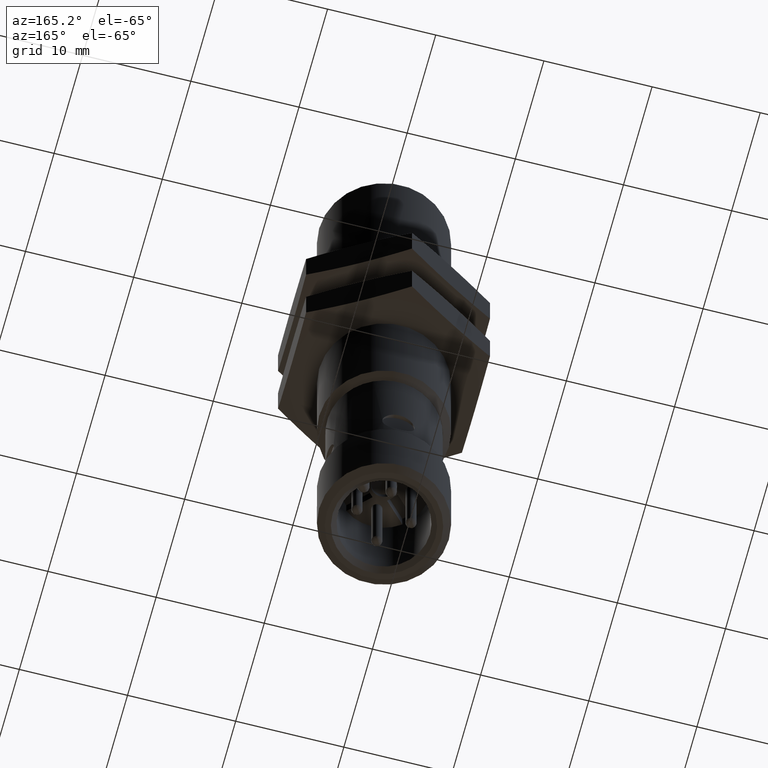
[diagram: clean part render]
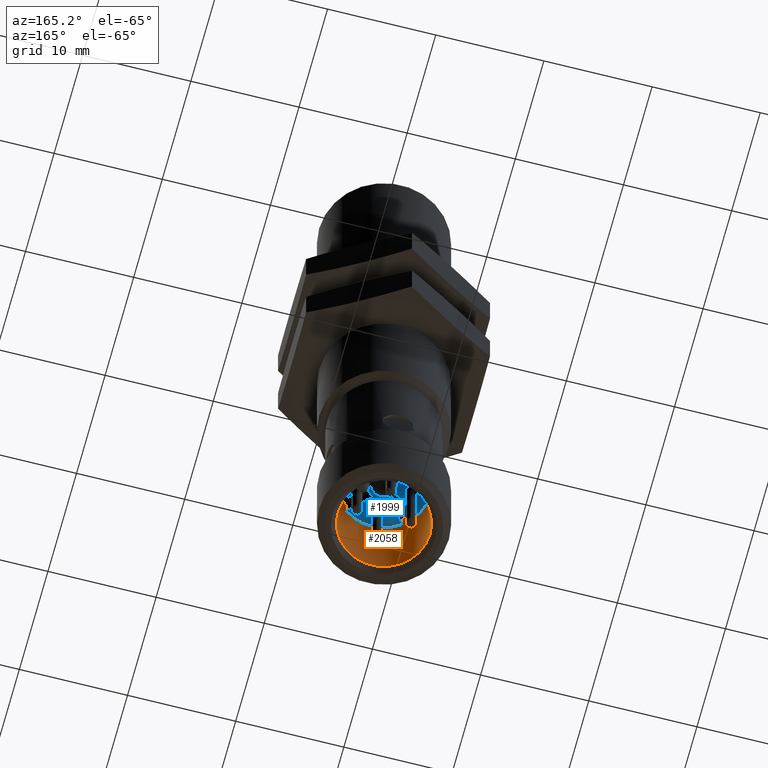
[diagram: same view with the hole feature highlighted: cylindrical wall and planar end face, labeled with their STEP entity ids]
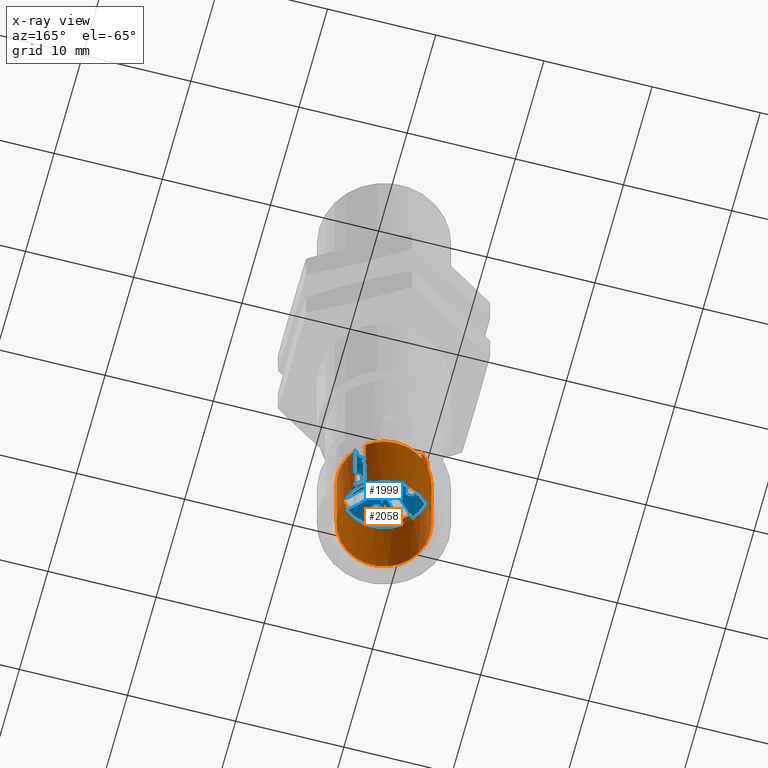
[diagram: x-ray of the same camera — body ghosted, the hole faces saturated]
A machine part, auxiliary view. The highlighted faces form one hole feature of diameter 8.5 mm: the cylindrical wall (entity #2058, orange) and its adjacent planar end face (entity #1999, blue) — they share a circular edge in the B-rep.
The next image is the same camera in x-ray (body ghosted, the hole faces saturated) — the bore reads through the body.
Wall:
#12 = VERTEX_POINT ( 'NONE', #1235 ) ;
#13 = EDGE_CURVE ( 'NONE', #2247, #2663, #2205, .T. ) ;
#50 = ORIENTED_EDGE ( 'NONE', *, *, #515, .F. ) ;
#53 = CARTESIAN_POINT ( 'NONE',  ( 100.9212680712877841, -34.78452409100841436, -25.02407678064943752 ) ) ;
#56 = VERTEX_POINT ( 'NONE', #521 ) ;
#73 = EDGE_CURVE ( 'NONE', #2247, #1303, #962, .T. ) ;
#97 = EDGE_CURVE ( 'NONE', #722, #2663, #1997, .T. ) ;
#110 = CARTESIAN_POINT ( 'NONE',  ( 101.1558730924629685, -34.83176818549659970, -24.99318428921344903 ) ) ;
#116 = EDGE_CURVE ( 'NONE', #56, #1866, #2099, .T. ) ;
#117 = LINE ( 'NONE', #1036, #2563 ) ;
#160 = VECTOR ( 'NONE', #2659, 39.37007874015748143 ) ;
#181 = AXIS2_PLACEMENT_3D ( 'NONE', #2491, #2003, #1794 ) ;
#201 = ORIENTED_EDGE ( 'NONE', *, *, #448, .T. ) ;
#226 = DIRECTION ( 'NONE',  ( -0.0000000000000000000, -1.000000000000000000, -0.0000000000000000000 ) ) ;
#259 = CARTESIAN_POINT ( 'NONE',  ( 101.1865310152355164, -34.78452409100841436, -25.02377179519677952 ) ) ;
#270 = DIRECTION ( 'NONE',  ( -0.0000000000000000000, -1.000000000000000000, -0.0000000000000000000 ) ) ;
#309 = VERTEX_POINT ( 'NONE', #1113 ) ;
#352 = DIRECTION ( 'NONE',  ( 0.0000000000000000000, 0.0000000000000000000, 1.000000000000000000 ) ) ;
#408 = CYLINDRICAL_SURFACE ( 'NONE', #618, 0.1673228346456727134 ) ;
#416 = AXIS2_PLACEMENT_3D ( 'NONE', #682, #1190, #2834 ) ;
#437 = VERTEX_POINT ( 'NONE', #259 ) ;
#448 = EDGE_CURVE ( 'NONE', #1394, #12, #1919, .T. ) ;
#497 = VERTEX_POINT ( 'NONE', #1422 ) ;
#515 = EDGE_CURVE ( 'NONE', #1866, #2445, #1814, .T. ) ;
#521 = CARTESIAN_POINT ( 'NONE',  ( 101.1867655838989606, -34.50105952407928100, -25.22778931038862282 ) ) ;
#537 = EDGE_CURVE ( 'NONE', #309, #1303, #1031, .T. ) ;
#550 = DIRECTION ( 'NONE',  ( 0.0000000000000000000, 1.000000000000000000, 0.0000000000000000000 ) ) ;
#551 = CARTESIAN_POINT ( 'NONE',  ( 101.1561780779156265, -34.50105952407928100, -25.25844723316116713 ) ) ;
#552 = CARTESIAN_POINT ( 'NONE',  ( 100.9212680712877841, -34.78452409100841436, -25.02407678064943752 ) ) ;
#578 = AXIS2_PLACEMENT_3D ( 'NONE', #1976, #550, #352 ) ;
#592 = CARTESIAN_POINT ( 'NONE',  ( 101.1853437073882844, -34.48973788764809711, -25.22969352719796277 ) ) ;
#618 = AXIS2_PLACEMENT_3D ( 'NONE', #2931, #1573, #635 ) ;
#622 = DIRECTION ( 'NONE',  ( 0.0000000000000000000, 0.0000000000000000000, 1.000000000000000000 ) ) ;
#635 = DIRECTION ( 'NONE',  ( 0.0000000000000000000, 0.0000000000000000000, 1.000000000000000000 ) ) ;
#650 = CARTESIAN_POINT ( 'NONE',  ( 101.1561780779156265, -34.78452409100841436, -25.25844723316117069 ) ) ;
#670 = AXIS2_PLACEMENT_3D ( 'NONE', #1194, #1164, #2387 ) ;
#682 = CARTESIAN_POINT ( 'NONE',  ( 101.0540168275933723, -34.83176818549659970, -25.12593304551903017 ) ) ;
#689 = VERTEX_POINT ( 'NONE', #1818 ) ;
#693 = CARTESIAN_POINT ( 'NONE',  ( 101.0540168275933723, -34.46168944533857825, -25.12593304551903017 ) ) ;
#722 = VERTEX_POINT ( 'NONE', #1388 ) ;
#735 = EDGE_CURVE ( 'NONE', #437, #689, #3008, .T. ) ;
#753 = DIRECTION ( 'NONE',  ( 0.0000000000000000000, 1.000000000000000000, 0.0000000000000000000 ) ) ;
#755 = EDGE_CURVE ( 'NONE', #1060, #1060, #2384, .T. ) ;
#793 = CARTESIAN_POINT ( 'NONE',  ( 101.1867655838989748, -34.49533157912034653, -25.22778931038862282 ) ) ;
#810 = VERTEX_POINT ( 'NONE', #2361 ) ;
#836 = LINE ( 'NONE', #1442, #2340 ) ;
#879 = VECTOR ( 'NONE', #1293, 39.37007874015748143 ) ;
#909 = AXIS2_PLACEMENT_3D ( 'NONE', #2770, #1833, #2062 ) ;
#913 = CARTESIAN_POINT ( 'NONE',  ( 101.1865310152355164, -34.78452409100841436, -25.02377179519677952 ) ) ;
#938 = CARTESIAN_POINT ( 'NONE',  ( 101.1724678928510599, -34.46168944533857825, -25.24411204590913727 ) ) ;
#957 = CARTESIAN_POINT ( 'NONE',  ( 101.1558730924629685, -34.78452409100841436, -24.99318428921345259 ) ) ;
#962 = CIRCLE ( 'NONE', #416, 0.1673228346456727134 ) ;
#980 = EDGE_CURVE ( 'NONE', #437, #2991, #2419, .T. ) ;
#1017 = ORIENTED_EDGE ( 'NONE', *, *, #13, .T. ) ;
#1021 = DIRECTION ( 'NONE',  ( 0.0000000000000000000, 0.0000000000000000000, 1.000000000000000000 ) ) ;
#1022 = FACE_OUTER_BOUND ( 'NONE', #2873, .T. ) ;
#1031 = LINE ( 'NONE', #1706, #160 ) ;
#1036 = CARTESIAN_POINT ( 'NONE',  ( 100.9215026399512283, -34.78452409100841436, -25.22809429584128083 ) ) ;
#1051 = CARTESIAN_POINT ( 'NONE',  ( 101.1802263795434556, -34.48175784492842411, -25.23586091237482165 ) ) ;
#1060 = VERTEX_POINT ( 'NONE', #938 ) ;
#1090 = ORIENTED_EDGE ( 'NONE', *, *, #755, .T. ) ;
#1113 = CARTESIAN_POINT ( 'NONE',  ( 100.9518555772711039, -34.78452409100841436, -24.99341885787689321 ) ) ;
#1163 = EDGE_CURVE ( 'NONE', #1394, #689, #2862, .T. ) ;
#1164 = DIRECTION ( 'NONE',  ( 0.0000000000000000000, 1.000000000000000000, 0.0000000000000000000 ) ) ;
#1175 = VERTEX_POINT ( 'NONE', #1696 ) ;
#1190 = DIRECTION ( 'NONE',  ( 0.0000000000000000000, 1.000000000000000000, 0.0000000000000000000 ) ) ;
#1194 = CARTESIAN_POINT ( 'NONE',  ( 101.0540168275933723, -34.83176818549659970, -25.12593304551903017 ) ) ;
#1235 = CARTESIAN_POINT ( 'NONE',  ( 101.1558730924629685, -34.78452409100841436, -24.99318428921344903 ) ) ;
#1242 = CIRCLE ( 'NONE', #181, 0.1673228346456727134 ) ;
#1245 = CARTESIAN_POINT ( 'NONE',  ( 101.1764724297257203, -34.47941012559618912, -25.24009753057887551 ) ) ;
#1255 = CARTESIAN_POINT ( 'NONE',  ( 101.1642815788440828, -34.48170178516435413, -25.25185003823481722 ) ) ;
#1290 = DIRECTION ( 'NONE',  ( 0.0000000000000000000, 1.000000000000000000, 0.0000000000000000000 ) ) ;
#1293 = DIRECTION ( 'NONE',  ( 0.0000000000000000000, 1.000000000000000000, 0.0000000000000000000 ) ) ;
#1303 = VERTEX_POINT ( 'NONE', #1494 ) ;
#1313 = AXIS2_PLACEMENT_3D ( 'NONE', #2686, #1290, #622 ) ;
#1328 = ORIENTED_EDGE ( 'NONE', *, *, #1364, .T. ) ;
#1364 = EDGE_CURVE ( 'NONE', #722, #497, #117, .T. ) ;
#1388 = CARTESIAN_POINT ( 'NONE',  ( 100.9215026399512283, -34.78452409100841436, -25.22809429584128083 ) ) ;
#1394 = VERTEX_POINT ( 'NONE', #110 ) ;
#1422 = CARTESIAN_POINT ( 'NONE',  ( 100.9215026399512425, -34.83176818549659970, -25.22809429584128438 ) ) ;
#1442 = CARTESIAN_POINT ( 'NONE',  ( 101.1867655838989606, -34.44200440596904400, -25.22778931038861927 ) ) ;
#1445 = EDGE_CURVE ( 'NONE', #810, #1175, #1775, .T. ) ;
#1451 = EDGE_LOOP ( 'NONE', ( #1505, #2914, #2109, #2441, #2703, #201, #1900, #2284, #2586, #1017, #2669, #1328, #2144, #2804, #2878, #50 ) ) ;
#1487 = CARTESIAN_POINT ( 'NONE',  ( 101.1561780779156265, -34.50105952407928100, -25.25844723316116713 ) ) ;
#1494 = CARTESIAN_POINT ( 'NONE',  ( 100.9518555772711181, -34.83176818549659970, -24.99341885787688611 ) ) ;
#1505 = ORIENTED_EDGE ( 'NONE', *, *, #116, .F. ) ;
#1519 = DIRECTION ( 'NONE',  ( 0.0000000000000000000, 1.000000000000000000, 0.0000000000000000000 ) ) ;
#1535 = DIRECTION ( 'NONE',  ( -0.0000000000000000000, -1.000000000000000000, 0.0000000000000000000 ) ) ;
#1536 = AXIS2_PLACEMENT_3D ( 'NONE', #693, #2570, #1599 ) ;
#1573 = DIRECTION ( 'NONE',  ( 0.0000000000000000000, 1.000000000000000000, 0.0000000000000000000 ) ) ;
#1587 = VECTOR ( 'NONE', #226, 39.37007874015748143 ) ;
#1590 = VECTOR ( 'NONE', #2809, 39.37007874015748143 ) ;
#1599 = DIRECTION ( 'NONE',  ( 0.7079193076573965238, 0.0000000000000000000, -0.7062933199782314153 ) ) ;
#1696 = CARTESIAN_POINT ( 'NONE',  ( 100.9521605627237761, -34.78452409100841436, -25.25868180182461131 ) ) ;
#1706 = CARTESIAN_POINT ( 'NONE',  ( 100.9518555772711181, -34.78452409100841436, -24.99341885787688611 ) ) ;
#1775 = LINE ( 'NONE', #2465, #879 ) ;
#1778 = EDGE_CURVE ( 'NONE', #2991, #56, #836, .T. ) ;
#1794 = DIRECTION ( 'NONE',  ( 0.0000000000000000000, 0.0000000000000000000, 1.000000000000000000 ) ) ;
#1814 = LINE ( 'NONE', #2388, #2973 ) ;
#1818 = CARTESIAN_POINT ( 'NONE',  ( 101.1865310152355022, -34.83176818549659970, -25.02377179519677597 ) ) ;
#1833 = DIRECTION ( 'NONE',  ( 0.0000000000000000000, 1.000000000000000000, 0.0000000000000000000 ) ) ;
#1866 = VERTEX_POINT ( 'NONE', #551 ) ;
#1883 = VECTOR ( 'NONE', #2879, 39.37007874015748143 ) ;
#1900 = ORIENTED_EDGE ( 'NONE', *, *, #1931, .F. ) ;
#1919 = LINE ( 'NONE', #957, #1590 ) ;
#1931 = EDGE_CURVE ( 'NONE', #309, #12, #2123, .T. ) ;
#1976 = CARTESIAN_POINT ( 'NONE',  ( 101.0540168275933723, -34.78452409100841436, -25.12593304551903017 ) ) ;
#1997 = CIRCLE ( 'NONE', #578, 0.1673228346456727134 ) ;
#2003 = DIRECTION ( 'NONE',  ( 0.0000000000000000000, 1.000000000000000000, 0.0000000000000000000 ) ) ;
#2058 = ADVANCED_FACE ( 'NONE', ( #2899, #1022 ), #408, .F. ) ;
#2062 = DIRECTION ( 'NONE',  ( 0.0000000000000000000, 0.0000000000000000000, 1.000000000000000000 ) ) ;
#2082 = EDGE_CURVE ( 'NONE', #2445, #1175, #1242, .T. ) ;
#2099 = B_SPLINE_CURVE_WITH_KNOTS ( 'NONE', 3,
 ( #2651, #793, #592, #1051, #1245, #2190, #1255, #2178, #2676, #1487 ),
 .UNSPECIFIED., .F., .F.,
 ( 4, 2, 2, 2, 4 ),
 ( 0.0000000000000000000, 0.0004302387630020023963, 0.0008604775260040047925, 0.001290716289006007189, 0.001720955052008009585 ),
 .UNSPECIFIED. ) ;
#2109 = ORIENTED_EDGE ( 'NONE', *, *, #980, .F. ) ;
#2123 = CIRCLE ( 'NONE', #2870, 0.1673228346456727134 ) ;
#2144 = ORIENTED_EDGE ( 'NONE', *, *, #2882, .F. ) ;
#2178 = CARTESIAN_POINT ( 'NONE',  ( 101.1580467547667439, -34.48977491248404448, -25.25704818070668978 ) ) ;
#2190 = CARTESIAN_POINT ( 'NONE',  ( 101.1684857446547738, -34.47940184755036341, -25.24810411889308170 ) ) ;
#2205 = LINE ( 'NONE', #53, #1883 ) ;
#2247 = VERTEX_POINT ( 'NONE', #2845 ) ;
#2284 = ORIENTED_EDGE ( 'NONE', *, *, #537, .T. ) ;
#2299 = CIRCLE ( 'NONE', #909, 0.1673228346456727134 ) ;
#2340 = VECTOR ( 'NONE', #753, 39.37007874015748143 ) ;
#2361 = CARTESIAN_POINT ( 'NONE',  ( 100.9521605627237761, -34.83176818549659970, -25.25868180182461131 ) ) ;
#2366 = CARTESIAN_POINT ( 'NONE',  ( 101.1867655838989606, -34.78452409100841436, -25.22778931038862638 ) ) ;
#2384 = CIRCLE ( 'NONE', #1536, 0.1673228346457374671 ) ;
#2387 = DIRECTION ( 'NONE',  ( 0.0000000000000000000, 0.0000000000000000000, 1.000000000000000000 ) ) ;
#2388 = CARTESIAN_POINT ( 'NONE',  ( 101.1561780779156265, -34.44200440596904400, -25.25844723316117069 ) ) ;
#2419 = CIRCLE ( 'NONE', #1313, 0.1673228346456727134 ) ;
#2441 = ORIENTED_EDGE ( 'NONE', *, *, #735, .T. ) ;
#2445 = VERTEX_POINT ( 'NONE', #650 ) ;
#2465 = CARTESIAN_POINT ( 'NONE',  ( 100.9521605627237761, -34.78452409100841436, -25.25868180182460776 ) ) ;
#2491 = CARTESIAN_POINT ( 'NONE',  ( 101.0540168275933723, -34.78452409100841436, -25.12593304551903017 ) ) ;
#2563 = VECTOR ( 'NONE', #1535, 39.37007874015748143 ) ;
#2570 = DIRECTION ( 'NONE',  ( 0.0000000000000000000, 1.000000000000000000, 0.0000000000000000000 ) ) ;
#2586 = ORIENTED_EDGE ( 'NONE', *, *, #73, .F. ) ;
#2651 = CARTESIAN_POINT ( 'NONE',  ( 101.1867655838989606, -34.50105952407928100, -25.22778931038862282 ) ) ;
#2659 = DIRECTION ( 'NONE',  ( -0.0000000000000000000, -1.000000000000000000, -0.0000000000000000000 ) ) ;
#2663 = VERTEX_POINT ( 'NONE', #552 ) ;
#2669 = ORIENTED_EDGE ( 'NONE', *, *, #97, .F. ) ;
#2676 = CARTESIAN_POINT ( 'NONE',  ( 101.1561780779156265, -34.49533158895093266, -25.25844723316117779 ) ) ;
#2686 = CARTESIAN_POINT ( 'NONE',  ( 101.0540168275933723, -34.78452409100841436, -25.12593304551903017 ) ) ;
#2703 = ORIENTED_EDGE ( 'NONE', *, *, #1163, .F. ) ;
#2770 = CARTESIAN_POINT ( 'NONE',  ( 101.0540168275933723, -34.83176818549659970, -25.12593304551903017 ) ) ;
#2804 = ORIENTED_EDGE ( 'NONE', *, *, #1445, .T. ) ;
#2809 = DIRECTION ( 'NONE',  ( 0.0000000000000000000, 1.000000000000000000, -0.0000000000000000000 ) ) ;
#2834 = DIRECTION ( 'NONE',  ( 0.0000000000000000000, 0.0000000000000000000, 1.000000000000000000 ) ) ;
#2845 = CARTESIAN_POINT ( 'NONE',  ( 100.9212680712877841, -34.83176818549659970, -25.02407678064943752 ) ) ;
#2862 = CIRCLE ( 'NONE', #670, 0.1673228346456727134 ) ;
#2870 = AXIS2_PLACEMENT_3D ( 'NONE', #2920, #1519, #1021 ) ;
#2873 = EDGE_LOOP ( 'NONE', ( #1090 ) ) ;
#2878 = ORIENTED_EDGE ( 'NONE', *, *, #2082, .F. ) ;
#2879 = DIRECTION ( 'NONE',  ( 0.0000000000000000000, 1.000000000000000000, 0.0000000000000000000 ) ) ;
#2882 = EDGE_CURVE ( 'NONE', #810, #497, #2299, .T. ) ;
#2899 = FACE_OUTER_BOUND ( 'NONE', #1451, .T. ) ;
#2914 = ORIENTED_EDGE ( 'NONE', *, *, #1778, .F. ) ;
#2920 = CARTESIAN_POINT ( 'NONE',  ( 101.0540168275933723, -34.78452409100841436, -25.12593304551903017 ) ) ;
#2931 = CARTESIAN_POINT ( 'NONE',  ( 101.0540168275933723, -34.44200440596904400, -25.12593304551903017 ) ) ;
#2973 = VECTOR ( 'NONE', #270, 39.37007874015748143 ) ;
#2991 = VERTEX_POINT ( 'NONE', #2366 ) ;
#3008 = LINE ( 'NONE', #913, #1587 ) ;
End face:
#12 = VERTEX_POINT ( 'NONE', #1235 ) ;
#42 = B_SPLINE_CURVE_WITH_KNOTS ( 'NONE', 1,
 ( #1306, #1563 ),
 .UNSPECIFIED., .F., .F.,
 ( 2, 2 ),
 ( 0.0000000000000000000, 1.000000000000000000 ),
 .UNSPECIFIED. ) ;
#81 = B_SPLINE_CURVE_WITH_KNOTS ( 'NONE', 1,
 ( #1161, #2103 ),
 .UNSPECIFIED., .F., .F.,
 ( 2, 2 ),
 ( 0.0000000000000000000, 1.000000000000000000 ),
 .UNSPECIFIED. ) ;
#97 = EDGE_CURVE ( 'NONE', #722, #2663, #1997, .T. ) ;
#114 = CIRCLE ( 'NONE', #2553, 0.01968503937007657148 ) ;
#123 = VERTEX_POINT ( 'NONE', #271 ) ;
#126 = ORIENTED_EDGE ( 'NONE', *, *, #334, .T. ) ;
#132 = ORIENTED_EDGE ( 'NONE', *, *, #1012, .F. ) ;
#134 = EDGE_CURVE ( 'NONE', #1726, #722, #520, .T. ) ;
#145 = DIRECTION ( 'NONE',  ( 0.0000000000000000000, 1.000000000000000000, 0.0000000000000000000 ) ) ;
#162 = AXIS2_PLACEMENT_3D ( 'NONE', #2343, #747, #258 ) ;
#165 = DIRECTION ( 'NONE',  ( 0.0000000000000000000, 0.0000000000000000000, 1.000000000000000000 ) ) ;
#173 = EDGE_CURVE ( 'NONE', #12, #2209, #3017, .T. ) ;
#174 = EDGE_LOOP ( 'NONE', ( #2235 ) ) ;
#180 = ORIENTED_EDGE ( 'NONE', *, *, #1575, .T. ) ;
#181 = AXIS2_PLACEMENT_3D ( 'NONE', #2491, #2003, #1794 ) ;
#203 = CARTESIAN_POINT ( 'NONE',  ( 101.1561780779156265, -34.78452409100841436, -25.25844723316117069 ) ) ;
#210 = EDGE_CURVE ( 'NONE', #779, #263, #568, .T. ) ;
#235 = DIRECTION ( 'NONE',  ( 0.0000000000000000000, 1.000000000000000000, 0.0000000000000000000 ) ) ;
#251 = B_SPLINE_CURVE_WITH_KNOTS ( 'NONE', 1,
 ( #565, #1264 ),
 .UNSPECIFIED., .F., .F.,
 ( 2, 2 ),
 ( 0.0000000000000000000, 1.000000000000000000 ),
 .UNSPECIFIED. ) ;
#258 = DIRECTION ( 'NONE',  ( 0.0000000000000000000, 0.0000000000000000000, 1.000000000000000000 ) ) ;
#259 = CARTESIAN_POINT ( 'NONE',  ( 101.1865310152355164, -34.78452409100841436, -25.02377179519677952 ) ) ;
#263 = VERTEX_POINT ( 'NONE', #2249 ) ;
#268 = EDGE_CURVE ( 'NONE', #2445, #1523, #455, .T. ) ;
#271 = CARTESIAN_POINT ( 'NONE',  ( 101.0540168275933723, -34.78452409100841436, -25.07868895103083418 ) ) ;
#294 = EDGE_CURVE ( 'NONE', #579, #848, #2802, .T. ) ;
#309 = VERTEX_POINT ( 'NONE', #1113 ) ;
#322 = CARTESIAN_POINT ( 'NONE',  ( 101.1557101811258548, -34.78452409100841436, -25.19680523735848965 ) ) ;
#334 = EDGE_CURVE ( 'NONE', #848, #710, #1135, .T. ) ;
#352 = DIRECTION ( 'NONE',  ( 0.0000000000000000000, 0.0000000000000000000, 1.000000000000000000 ) ) ;
#355 = ORIENTED_EDGE ( 'NONE', *, *, #268, .F. ) ;
#375 = DIRECTION ( 'NONE',  ( 0.0000000000000000000, 0.0000000000000000000, 1.000000000000000000 ) ) ;
#395 = CARTESIAN_POINT ( 'NONE',  ( 101.0540168275933723, -34.78452409100841436, -25.12593304551903017 ) ) ;
#424 = DIRECTION ( 'NONE',  ( 0.0000000000000000000, 1.000000000000000000, 0.0000000000000000000 ) ) ;
#433 = DIRECTION ( 'NONE',  ( 0.0000000000000000000, 0.0000000000000000000, 1.000000000000000000 ) ) ;
#437 = VERTEX_POINT ( 'NONE', #259 ) ;
#442 = CARTESIAN_POINT ( 'NONE',  ( 101.0276355535478388, -34.78452409100841436, -25.18303305683689786 ) ) ;
#444 = FACE_OUTER_BOUND ( 'NONE', #2218, .T. ) ;
#455 = B_SPLINE_CURVE_WITH_KNOTS ( 'NONE', 1,
 ( #203, #654 ),
 .UNSPECIFIED., .F., .F.,
 ( 2, 2 ),
 ( 0.0000000000000000000, 1.000000000000000000 ),
 .UNSPECIFIED. ) ;
#470 = ORIENTED_EDGE ( 'NONE', *, *, #3011, .T. ) ;
#474 = B_SPLINE_CURVE_WITH_KNOTS ( 'NONE', 1,
 ( #1662, #712 ),
 .UNSPECIFIED., .F., .F.,
 ( 2, 2 ),
 ( 0.0000000000000000000, 1.000000000000000000 ),
 .UNSPECIFIED. ) ;
#520 = B_SPLINE_CURVE_WITH_KNOTS ( 'NONE', 1,
 ( #1263, #773 ),
 .UNSPECIFIED., .F., .F.,
 ( 2, 2 ),
 ( 0.0000000000000000000, 1.000000000000000000 ),
 .UNSPECIFIED. ) ;
#527 = DIRECTION ( 'NONE',  ( 0.0000000000000000000, 0.0000000000000000000, 1.000000000000000000 ) ) ;
#547 = CARTESIAN_POINT ( 'NONE',  ( 101.1111168389112436, -34.78452409100841436, -25.15231431956456021 ) ) ;
#550 = DIRECTION ( 'NONE',  ( 0.0000000000000000000, 1.000000000000000000, 0.0000000000000000000 ) ) ;
#552 = CARTESIAN_POINT ( 'NONE',  ( 100.9212680712877841, -34.78452409100841436, -25.02407678064943752 ) ) ;
#561 = FACE_BOUND ( 'NONE', #1458, .T. ) ;
#565 = CARTESIAN_POINT ( 'NONE',  ( 101.1557101811258548, -34.78452409100841436, -25.19680523735848965 ) ) ;
#568 = CIRCLE ( 'NONE', #960, 0.02165354330707985886 ) ;
#578 = AXIS2_PLACEMENT_3D ( 'NONE', #1976, #550, #352 ) ;
#579 = VERTEX_POINT ( 'NONE', #547 ) ;
#616 = VERTEX_POINT ( 'NONE', #1697 ) ;
#621 = PLANE ( 'NONE',  #2395 ) ;
#622 = DIRECTION ( 'NONE',  ( 0.0000000000000000000, 0.0000000000000000000, 1.000000000000000000 ) ) ;
#644 = CARTESIAN_POINT ( 'NONE',  ( 101.0805293375623819, -34.78452409100841436, -25.18297223769197402 ) ) ;
#650 = CARTESIAN_POINT ( 'NONE',  ( 101.1561780779156265, -34.78452409100841436, -25.25844723316117069 ) ) ;
#652 = ORIENTED_EDGE ( 'NONE', *, *, #2603, .T. ) ;
#653 = AXIS2_PLACEMENT_3D ( 'NONE', #1639, #235, #2094 ) ;
#654 = CARTESIAN_POINT ( 'NONE',  ( 101.1404516365288089, -34.78452409100841436, -25.24275691312270453 ) ) ;
#667 = CARTESIAN_POINT ( 'NONE',  ( 100.9521605627237761, -34.78452409100841436, -25.25868180182461131 ) ) ;
#679 = CARTESIAN_POINT ( 'NONE',  ( 101.1111168389112436, -34.78452409100841436, -25.15231431956456021 ) ) ;
#694 = EDGE_CURVE ( 'NONE', #2454, #2454, #1704, .T. ) ;
#710 = VERTEX_POINT ( 'NONE', #1612 ) ;
#712 = CARTESIAN_POINT ( 'NONE',  ( 101.0275043222588351, -34.78452409100841436, -25.06889384870094517 ) ) ;
#722 = VERTEX_POINT ( 'NONE', #1388 ) ;
#747 = DIRECTION ( 'NONE',  ( 0.0000000000000000000, 1.000000000000000000, 0.0000000000000000000 ) ) ;
#773 = CARTESIAN_POINT ( 'NONE',  ( 100.9215026399512283, -34.78452409100841436, -25.22809429584128083 ) ) ;
#779 = VERTEX_POINT ( 'NONE', #2599 ) ;
#784 = CARTESIAN_POINT ( 'NONE',  ( 101.0803981016389059, -34.78452409100841436, -25.06883303420116249 ) ) ;
#818 = EDGE_CURVE ( 'NONE', #2253, #1496, #474, .T. ) ;
#823 = B_SPLINE_CURVE_WITH_KNOTS ( 'NONE', 1,
 ( #667, #880 ),
 .UNSPECIFIED., .F., .F.,
 ( 2, 2 ),
 ( 0.0000000000000000000, 1.000000000000000000 ),
 .UNSPECIFIED. ) ;
#839 = B_SPLINE_CURVE_WITH_KNOTS ( 'NONE', 1,
 ( #1023, #1054 ),
 .UNSPECIFIED., .F., .F.,
 ( 2, 2 ),
 ( 0.0000000000000000000, 1.000000000000000000 ),
 .UNSPECIFIED. ) ;
#840 = CARTESIAN_POINT ( 'NONE',  ( 101.1557453895204617, -34.78452409100841436, -25.22742795173642705 ) ) ;
#848 = VERTEX_POINT ( 'NONE', #1903 ) ;
#852 = EDGE_LOOP ( 'NONE', ( #2698 ) ) ;
#880 = CARTESIAN_POINT ( 'NONE',  ( 101.0276355535478388, -34.78452409100841436, -25.18303305683689786 ) ) ;
#888 = CARTESIAN_POINT ( 'NONE',  ( 101.1524419593887387, -34.78452409100841436, -25.12581988145273471 ) ) ;
#911 = VERTEX_POINT ( 'NONE', #322 ) ;
#941 = AXIS2_PLACEMENT_3D ( 'NONE', #2740, #424, #433 ) ;
#950 = CARTESIAN_POINT ( 'NONE',  ( 101.1524419593887387, -34.78452409100841436, -25.10613484208266044 ) ) ;
#960 = AXIS2_PLACEMENT_3D ( 'NONE', #840, #145, #375 ) ;
#966 = EDGE_LOOP ( 'NONE', ( #2316 ) ) ;
#980 = EDGE_CURVE ( 'NONE', #437, #2991, #2419, .T. ) ;
#1012 = EDGE_CURVE ( 'NONE', #263, #2991, #2346, .T. ) ;
#1019 = CARTESIAN_POINT ( 'NONE',  ( 101.1558730924629685, -34.78452409100841436, -24.99318428921344903 ) ) ;
#1021 = DIRECTION ( 'NONE',  ( 0.0000000000000000000, 0.0000000000000000000, 1.000000000000000000 ) ) ;
#1023 = CARTESIAN_POINT ( 'NONE',  ( 101.0275043222588351, -34.78452409100841436, -25.06889384870094517 ) ) ;
#1044 = ORIENTED_EDGE ( 'NONE', *, *, #2082, .T. ) ;
#1054 = CARTESIAN_POINT ( 'NONE',  ( 100.9518555772711039, -34.78452409100841436, -24.99341885787689321 ) ) ;
#1062 = FACE_BOUND ( 'NONE', #966, .T. ) ;
#1072 = ORIENTED_EDGE ( 'NONE', *, *, #2403, .T. ) ;
#1088 = CARTESIAN_POINT ( 'NONE',  ( 101.1867655838989606, -34.78452409100841436, -25.22778931038862638 ) ) ;
#1096 = EDGE_CURVE ( 'NONE', #1523, #779, #2381, .T. ) ;
#1113 = CARTESIAN_POINT ( 'NONE',  ( 100.9518555772711039, -34.78452409100841436, -24.99341885787689321 ) ) ;
#1127 = ORIENTED_EDGE ( 'NONE', *, *, #1931, .T. ) ;
#1135 = B_SPLINE_CURVE_WITH_KNOTS ( 'NONE', 1,
 ( #644, #1343 ),
 .UNSPECIFIED., .F., .F.,
 ( 2, 2 ),
 ( 0.0000000000000000000, 1.000000000000000000 ),
 .UNSPECIFIED. ) ;
#1161 = CARTESIAN_POINT ( 'NONE',  ( 101.1110560244114538, -34.78452409100841436, -25.09942054018448943 ) ) ;
#1166 = CIRCLE ( 'NONE', #1516, 0.04724409448819688606 ) ;
#1175 = VERTEX_POINT ( 'NONE', #1696 ) ;
#1182 = EDGE_LOOP ( 'NONE', ( #1447 ) ) ;
#1185 = EDGE_CURVE ( 'NONE', #2975, #2975, #2417, .T. ) ;
#1228 = EDGE_CURVE ( 'NONE', #123, #123, #1166, .T. ) ;
#1235 = CARTESIAN_POINT ( 'NONE',  ( 101.1558730924629685, -34.78452409100841436, -24.99318428921344903 ) ) ;
#1242 = CIRCLE ( 'NONE', #181, 0.1673228346456727134 ) ;
#1263 = CARTESIAN_POINT ( 'NONE',  ( 100.9969776307752909, -34.78452409100841436, -25.15244555085357092 ) ) ;
#1264 = CARTESIAN_POINT ( 'NONE',  ( 101.1111168389112436, -34.78452409100841436, -25.15231431956456021 ) ) ;
#1290 = DIRECTION ( 'NONE',  ( 0.0000000000000000000, 1.000000000000000000, 0.0000000000000000000 ) ) ;
#1306 = CARTESIAN_POINT ( 'NONE',  ( 101.0276355535478388, -34.78452409100841436, -25.18303305683689786 ) ) ;
#1311 = ORIENTED_EDGE ( 'NONE', *, *, #1096, .F. ) ;
#1313 = AXIS2_PLACEMENT_3D ( 'NONE', #2686, #1290, #622 ) ;
#1343 = CARTESIAN_POINT ( 'NONE',  ( 101.1251226751425207, -34.78452409100841436, -25.22746316013104106 ) ) ;
#1379 = DIRECTION ( 'NONE',  ( 0.0000000000000000000, 1.000000000000000000, 0.0000000000000000000 ) ) ;
#1388 = CARTESIAN_POINT ( 'NONE',  ( 100.9215026399512283, -34.78452409100841436, -25.22809429584128083 ) ) ;
#1407 = CARTESIAN_POINT ( 'NONE',  ( 101.0803981016389059, -34.78452409100841436, -25.06883303420116249 ) ) ;
#1414 = CARTESIAN_POINT ( 'NONE',  ( 101.1557101811258548, -34.78452409100841436, -25.19680523735848965 ) ) ;
#1436 = DIRECTION ( 'NONE',  ( 0.0000000000000000000, 1.000000000000000000, 0.0000000000000000000 ) ) ;
#1439 = CARTESIAN_POINT ( 'NONE',  ( 100.9555916957980060, -34.78452409100841436, -25.10636117021524782 ) ) ;
#1447 = ORIENTED_EDGE ( 'NONE', *, *, #1969, .F. ) ;
#1458 = EDGE_LOOP ( 'NONE', ( #2897 ) ) ;
#1496 = VERTEX_POINT ( 'NONE', #2046 ) ;
#1516 = AXIS2_PLACEMENT_3D ( 'NONE', #2601, #1436, #527 ) ;
#1519 = DIRECTION ( 'NONE',  ( 0.0000000000000000000, 1.000000000000000000, 0.0000000000000000000 ) ) ;
#1523 = VERTEX_POINT ( 'NONE', #1640 ) ;
#1563 = CARTESIAN_POINT ( 'NONE',  ( 100.9969776307752909, -34.78452409100841436, -25.15244555085357092 ) ) ;
#1575 = EDGE_CURVE ( 'NONE', #2209, #616, #2999, .T. ) ;
#1612 = CARTESIAN_POINT ( 'NONE',  ( 101.1251226751425207, -34.78452409100841436, -25.22746316013104106 ) ) ;
#1639 = CARTESIAN_POINT ( 'NONE',  ( 101.0539036635270804, -34.78452409100841436, -25.02750791372367800 ) ) ;
#1640 = CARTESIAN_POINT ( 'NONE',  ( 101.1404516365288089, -34.78452409100841436, -25.24275691312270453 ) ) ;
#1645 = CARTESIAN_POINT ( 'NONE',  ( 101.1404164281341878, -34.78452409100841436, -25.21213419874477069 ) ) ;
#1646 = ORIENTED_EDGE ( 'NONE', *, *, #294, .T. ) ;
#1662 = CARTESIAN_POINT ( 'NONE',  ( 100.9969168162755011, -34.78452409100841436, -25.09955177147349659 ) ) ;
#1696 = CARTESIAN_POINT ( 'NONE',  ( 100.9521605627237761, -34.78452409100841436, -25.25868180182461131 ) ) ;
#1697 = CARTESIAN_POINT ( 'NONE',  ( 101.1110560244114538, -34.78452409100841436, -25.09942054018448943 ) ) ;
#1698 = FACE_BOUND ( 'NONE', #174, .T. ) ;
#1704 = CIRCLE ( 'NONE', #2947, 0.01968503937007657148 ) ;
#1726 = VERTEX_POINT ( 'NONE', #2803 ) ;
#1748 = ORIENTED_EDGE ( 'NONE', *, *, #210, .F. ) ;
#1764 = CARTESIAN_POINT ( 'NONE',  ( 100.9555916957980060, -34.78452409100841436, -25.12604620958532209 ) ) ;
#1782 = B_SPLINE_CURVE_WITH_KNOTS ( 'NONE', 1,
 ( #1645, #1414 ),
 .UNSPECIFIED., .F., .F.,
 ( 2, 2 ),
 ( 0.4999999999998571143, 1.000000000000000000 ),
 .UNSPECIFIED. ) ;
#1794 = DIRECTION ( 'NONE',  ( 0.0000000000000000000, 0.0000000000000000000, 1.000000000000000000 ) ) ;
#1798 = ORIENTED_EDGE ( 'NONE', *, *, #97, .T. ) ;
#1812 = DIRECTION ( 'NONE',  ( 0.0000000000000000000, -0.0000000000000000000, 1.000000000000000000 ) ) ;
#1856 = ORIENTED_EDGE ( 'NONE', *, *, #2060, .T. ) ;
#1903 = CARTESIAN_POINT ( 'NONE',  ( 101.0805293375623819, -34.78452409100841436, -25.18297223769197402 ) ) ;
#1908 = CARTESIAN_POINT ( 'NONE',  ( 101.0541299916596643, -34.78452409100841436, -25.20467313794430453 ) ) ;
#1931 = EDGE_CURVE ( 'NONE', #309, #12, #2123, .T. ) ;
#1949 = EDGE_CURVE ( 'NONE', #911, #579, #251, .T. ) ;
#1969 = EDGE_CURVE ( 'NONE', #2114, #2114, #114, .T. ) ;
#1976 = CARTESIAN_POINT ( 'NONE',  ( 101.0540168275933723, -34.78452409100841436, -25.12593304551903017 ) ) ;
#1997 = CIRCLE ( 'NONE', #578, 0.1673228346456727134 ) ;
#1999 = ADVANCED_FACE ( 'NONE', ( #2937, #2459, #1698, #561, #1062, #444 ), #621, .T. ) ;
#2003 = DIRECTION ( 'NONE',  ( 0.0000000000000000000, 1.000000000000000000, 0.0000000000000000000 ) ) ;
#2010 = B_SPLINE_CURVE_WITH_KNOTS ( 'NONE', 1,
 ( #2304, #2056 ),
 .UNSPECIFIED., .F., .F.,
 ( 2, 2 ),
 ( 0.0000000000000000000, 1.000000000000000000 ),
 .UNSPECIFIED. ) ;
#2046 = CARTESIAN_POINT ( 'NONE',  ( 101.0275043222588351, -34.78452409100841436, -25.06889384870094517 ) ) ;
#2056 = CARTESIAN_POINT ( 'NONE',  ( 100.9969168162755011, -34.78452409100841436, -25.09955177147349659 ) ) ;
#2060 = EDGE_CURVE ( 'NONE', #2119, #1726, #42, .T. ) ;
#2082 = EDGE_CURVE ( 'NONE', #2445, #1175, #1242, .T. ) ;
#2094 = DIRECTION ( 'NONE',  ( 0.0000000000000000000, 0.0000000000000000000, 1.000000000000000000 ) ) ;
#2103 = CARTESIAN_POINT ( 'NONE',  ( 101.1865310152355164, -34.78452409100841436, -25.02377179519677952 ) ) ;
#2114 = VERTEX_POINT ( 'NONE', #1439 ) ;
#2118 = CIRCLE ( 'NONE', #653, 0.01968503937007657148 ) ;
#2119 = VERTEX_POINT ( 'NONE', #442 ) ;
#2123 = CIRCLE ( 'NONE', #2870, 0.1673228346456727134 ) ;
#2209 = VERTEX_POINT ( 'NONE', #2286 ) ;
#2218 = EDGE_LOOP ( 'NONE', ( #652, #2961, #132, #1748, #470, #2956, #1646, #126, #1072, #1311, #355, #1044, #2979, #1856, #2330, #1798, #2515, #2469, #2504, #1127, #2571, #180 ) ) ;
#2235 = ORIENTED_EDGE ( 'NONE', *, *, #694, .F. ) ;
#2249 = CARTESIAN_POINT ( 'NONE',  ( 101.1710391425121287, -34.78452409100841436, -25.21209899035015667 ) ) ;
#2253 = VERTEX_POINT ( 'NONE', #2380 ) ;
#2286 = CARTESIAN_POINT ( 'NONE',  ( 101.0803981016389059, -34.78452409100841436, -25.06883303420116249 ) ) ;
#2291 = B_SPLINE_CURVE_WITH_KNOTS ( 'NONE', 1,
 ( #2732, #2980 ),
 .UNSPECIFIED., .F., .F.,
 ( 2, 2 ),
 ( 0.0000000000000000000, 0.4999999999998571143 ),
 .UNSPECIFIED. ) ;
#2304 = CARTESIAN_POINT ( 'NONE',  ( 100.9212680712877841, -34.78452409100841436, -25.02407678064943752 ) ) ;
#2316 = ORIENTED_EDGE ( 'NONE', *, *, #1185, .F. ) ;
#2330 = ORIENTED_EDGE ( 'NONE', *, *, #134, .T. ) ;
#2343 = CARTESIAN_POINT ( 'NONE',  ( 101.0541299916596643, -34.78452409100841436, -25.22435817731438235 ) ) ;
#2346 = B_SPLINE_CURVE_WITH_KNOTS ( 'NONE', 1,
 ( #2493, #1088 ),
 .UNSPECIFIED., .F., .F.,
 ( 2, 2 ),
 ( 0.0000000000000000000, 1.000000000000000000 ),
 .UNSPECIFIED. ) ;
#2366 = CARTESIAN_POINT ( 'NONE',  ( 101.1867655838989606, -34.78452409100841436, -25.22778931038862638 ) ) ;
#2380 = CARTESIAN_POINT ( 'NONE',  ( 100.9969168162755011, -34.78452409100841436, -25.09955177147349659 ) ) ;
#2381 = CIRCLE ( 'NONE', #941, 0.02165354330707985886 ) ;
#2395 = AXIS2_PLACEMENT_3D ( 'NONE', #395, #2482, #1812 ) ;
#2403 = EDGE_CURVE ( 'NONE', #710, #779, #2291, .T. ) ;
#2417 = CIRCLE ( 'NONE', #162, 0.01968503937007657148 ) ;
#2419 = CIRCLE ( 'NONE', #1313, 0.1673228346456727134 ) ;
#2445 = VERTEX_POINT ( 'NONE', #650 ) ;
#2452 = EDGE_CURVE ( 'NONE', #1175, #2119, #823, .T. ) ;
#2454 = VERTEX_POINT ( 'NONE', #950 ) ;
#2459 = FACE_BOUND ( 'NONE', #1182, .T. ) ;
#2469 = ORIENTED_EDGE ( 'NONE', *, *, #818, .T. ) ;
#2471 = EDGE_CURVE ( 'NONE', #2663, #2253, #2010, .T. ) ;
#2482 = DIRECTION ( 'NONE',  ( 0.0000000000000000000, 1.000000000000000000, 0.0000000000000000000 ) ) ;
#2491 = CARTESIAN_POINT ( 'NONE',  ( 101.0540168275933723, -34.78452409100841436, -25.12593304551903017 ) ) ;
#2493 = CARTESIAN_POINT ( 'NONE',  ( 101.1710391425121287, -34.78452409100841436, -25.21209899035015667 ) ) ;
#2500 = DIRECTION ( 'NONE',  ( 0.0000000000000000000, 1.000000000000000000, 0.0000000000000000000 ) ) ;
#2504 = ORIENTED_EDGE ( 'NONE', *, *, #2719, .T. ) ;
#2515 = ORIENTED_EDGE ( 'NONE', *, *, #2471, .T. ) ;
#2524 = EDGE_CURVE ( 'NONE', #2772, #2772, #2118, .T. ) ;
#2553 = AXIS2_PLACEMENT_3D ( 'NONE', #1764, #2500, #165 ) ;
#2571 = ORIENTED_EDGE ( 'NONE', *, *, #173, .T. ) ;
#2599 = CARTESIAN_POINT ( 'NONE',  ( 101.1404164281341878, -34.78452409100841436, -25.21213419874477069 ) ) ;
#2601 = CARTESIAN_POINT ( 'NONE',  ( 101.0540168275933723, -34.78452409100841436, -25.12593304551903017 ) ) ;
#2603 = EDGE_CURVE ( 'NONE', #616, #437, #81, .T. ) ;
#2663 = VERTEX_POINT ( 'NONE', #552 ) ;
#2686 = CARTESIAN_POINT ( 'NONE',  ( 101.0540168275933723, -34.78452409100841436, -25.12593304551903017 ) ) ;
#2698 = ORIENTED_EDGE ( 'NONE', *, *, #1228, .F. ) ;
#2719 = EDGE_CURVE ( 'NONE', #1496, #309, #839, .T. ) ;
#2732 = CARTESIAN_POINT ( 'NONE',  ( 101.1251226751425207, -34.78452409100841436, -25.22746316013104106 ) ) ;
#2740 = CARTESIAN_POINT ( 'NONE',  ( 101.1557453895204617, -34.78452409100841436, -25.22742795173642705 ) ) ;
#2772 = VERTEX_POINT ( 'NONE', #2853 ) ;
#2786 = DIRECTION ( 'NONE',  ( 0.0000000000000000000, 0.0000000000000000000, 1.000000000000000000 ) ) ;
#2802 = B_SPLINE_CURVE_WITH_KNOTS ( 'NONE', 1,
 ( #679, #3013 ),
 .UNSPECIFIED., .F., .F.,
 ( 2, 2 ),
 ( 0.0000000000000000000, 1.000000000000000000 ),
 .UNSPECIFIED. ) ;
#2803 = CARTESIAN_POINT ( 'NONE',  ( 100.9969776307752909, -34.78452409100841436, -25.15244555085357092 ) ) ;
#2853 = CARTESIAN_POINT ( 'NONE',  ( 101.0539036635270804, -34.78452409100841436, -25.00782287435360018 ) ) ;
#2870 = AXIS2_PLACEMENT_3D ( 'NONE', #2920, #1519, #1021 ) ;
#2897 = ORIENTED_EDGE ( 'NONE', *, *, #2524, .F. ) ;
#2920 = CARTESIAN_POINT ( 'NONE',  ( 101.0540168275933723, -34.78452409100841436, -25.12593304551903017 ) ) ;
#2937 = FACE_BOUND ( 'NONE', #852, .T. ) ;
#2947 = AXIS2_PLACEMENT_3D ( 'NONE', #888, #1379, #2786 ) ;
#2956 = ORIENTED_EDGE ( 'NONE', *, *, #1949, .T. ) ;
#2961 = ORIENTED_EDGE ( 'NONE', *, *, #980, .T. ) ;
#2975 = VERTEX_POINT ( 'NONE', #1908 ) ;
#2979 = ORIENTED_EDGE ( 'NONE', *, *, #2452, .T. ) ;
#2980 = CARTESIAN_POINT ( 'NONE',  ( 101.1404164281341878, -34.78452409100841436, -25.21213419874477069 ) ) ;
#2991 = VERTEX_POINT ( 'NONE', #2366 ) ;
#2999 = B_SPLINE_CURVE_WITH_KNOTS ( 'NONE', 1,
 ( #1407, #3027 ),
 .UNSPECIFIED., .F., .F.,
 ( 2, 2 ),
 ( 0.0000000000000000000, 1.000000000000000000 ),
 .UNSPECIFIED. ) ;
#3011 = EDGE_CURVE ( 'NONE', #779, #911, #1782, .T. ) ;
#3013 = CARTESIAN_POINT ( 'NONE',  ( 101.0805293375623819, -34.78452409100841436, -25.18297223769197402 ) ) ;
#3017 = B_SPLINE_CURVE_WITH_KNOTS ( 'NONE', 1,
 ( #1019, #784 ),
 .UNSPECIFIED., .F., .F.,
 ( 2, 2 ),
 ( 0.0000000000000000000, 1.000000000000000000 ),
 .UNSPECIFIED. ) ;
#3027 = CARTESIAN_POINT ( 'NONE',  ( 101.1110560244114538, -34.78452409100841436, -25.09942054018448943 ) ) ;